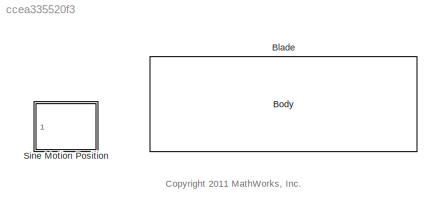
MODEL slx_ccea335520f3
KIND library
BLOCK [Reference] Blade  REF=mblibv1/Bodies/Body
  AttachedToCS = CG
  BodyColor = [1 1 1]
  BodyColorSelMode = COLORPALETTE
  CG = Left$CG$[0 WT_Params.Blade.length/2 0]$CS1$CS1$m$[0 0 0]$Euler X-Y-Z$deg$CS1$false$none
  CGPos = [0 WT_Params.Blade.length/2 0]
  CGRot = [0 0 0]
  CS0Pos = []
  CS0Rot = []
  CS10Pos = [WT_Params.Blade.Geometry.root_radius*sin(0.6*pi) 0 WT_Params.Blade.Geometry.root_radius*cos(0.6*pi)]
  CS10Rot = [0 0 0]
  CS11Pos = [WT_Params.Blade.Geometry.root_radius*sin(0.8*pi) 0 WT_Params.Blade.Geometry.root_radius*cos(0.8*pi)]
  CS11Rot = [0 0 0]
  CS12Pos = [WT_Params.Blade.Geometry.root_radius*sin(1.0*pi) 0 WT_Params.Blade.Geometry.root_radius*cos(1.0*pi)]
  CS12Rot = [0 0 0]
  CS13Pos = [WT_Params.Blade.Geometry.root_radius*sin(1.2*pi) 0 WT_Params.Blade.Geometry.root_radius*cos(1.2*pi)]
  CS13Rot = [0 0 0]
  CS14Pos = [WT_Params.Blade.Geometry.root_radius*sin(1.4*pi) 0 WT_Params.Blade.Geometry.root_radius*cos(1.4*pi)]
  CS14Rot = [0 0 0]
  CS15Pos = [WT_Params.Blade.Geometry.root_radius*sin(1.6*pi) 0 WT_Params.Blade.Geometry.root_radius*cos(1.6*pi)]
  CS15Rot = [0 0 0]
  CS16Pos = [WT_Params.Blade.Geometry.root_radius*sin(1.8*pi) 0 WT_Params.Blade.Geometry.root_radius*cos(1.8*pi)]
  CS16Rot = [0 0 0]
  CS17Pos = [0 WT_Params.Blade.length/4 0]
  CS17Rot = [0 0 0]
  CS18Pos = [WT_Params.Blade.Geometry.ctr_to_leading_edge.x 0 WT_Params.Blade.Geometry.ctr_to_leading_edge.z]
  CS18Rot = [0 0 0]
  CS19Pos = [WT_Params.Blade.Geometry.ctr_to_a1.x 0 WT_Params.Blade.Geometry.ctr_to_a1.z]
  CS19Rot = [0 0 0]
  CS1Pos = [0 0 0]
  CS1Rot = [0 0 0]
  CS20Pos = [WT_Params.Blade.Geometry.ctr_to_a2.x 0 WT_Params.Blade.Geometry.ctr_to_a2.z]
  CS20Rot = [0 0 0]
  CS2Pos = [0 WT_Params.Blade.length 0]
  CS2Rot = [0 0 0]
  CS3Pos = [WT_Params.Blade.Geometry.ctr_to_d1.x 0 WT_Params.Blade.Geometry.ctr_to_d1.z]
  CS3Rot = [0 0 0]
  CS4Pos = [0 0 0]
  CS4Rot = [0 0 0]
  CS5Pos = [0 0 0]
  CS5Rot = [0 0 0]
  CS6Pos = [WT_Params.Blade.Actuator_Offset.x WT_Params.Blade.Actuator_Offset.y WT_Params.Blade.Actuator_Offset.z]
  CS6Rot = [0 0 0]
  CS7Pos = [WT_Params.Blade.Geometry.root_radius*sin(0) 0 WT_Params.Blade.Geometry.root_radius*cos(0)]
  CS7Rot = [0 0 0]
  CS8Pos = [WT_Params.Blade.Geometry.root_radius*sin(0.2*pi) 0 WT_Params.Blade.Geometry.root_radius*cos(0.2*pi)]
  CS8Rot = [0 0 0]
  CS9Pos = [WT_Params.Blade.Geometry.root_radius*sin(0.4*pi) 0 WT_Params.Blade.Geometry.root_radius*cos(0.4*pi)]
  CS9Rot = [0 0 0]
  ClassName = Body
  Density = 1
  DensityUnits = kg/m^3
  DensityUse = false
  DialogClass = MechanicalBodyBlock
  GraphicsMode = MACHINE_DEFAULT
  Inertia = WT_Params.Blade.inertia
  InertiaUnits = kg*m^2
  LConnTagsString = CS4|CS6|CS1|CS5
  Mass = WT_Params.Blade.mass
  MassUnits = kg
  Ports = [0, 0, 0, 0, 0, 4, 1]
  RConnTagsString = CS2
  Shape = Cylinder
  ShapeDims = [1 1]
  ShapeUnits = m
  ShapeUse = false
  SourceBlock = mblibv1/Bodies/Body
  SourceType = Body
  UpdateFromCAD = off
  WorkingFrames = Left$CS4$[0 0 0]$CS1$CS1$m$[0 0 0]$Euler X-Y-Z$deg$CS1$true$none#Left$CS6$[WT_Params.Blade.Actuator_Offset.x WT_Params.Blade.Actuator_Offset.y WT_Params.Blade.Actuator_Offset.z]$CS1$CS1$m$[0 0 0]$Euler X-Y-Z$deg$CS1$true$none#Left$CS1$[0 0 0]$Adjoining$Adjoining$m$[0 0 0]$Euler X-Y-Z$deg$Adjoining$true$none#Left$CS7$[WT_Params.Blade.Geometry.root_radius*sin(0) 0 WT_Params.Blade.Geometry.root_radiu...<+3039ch>
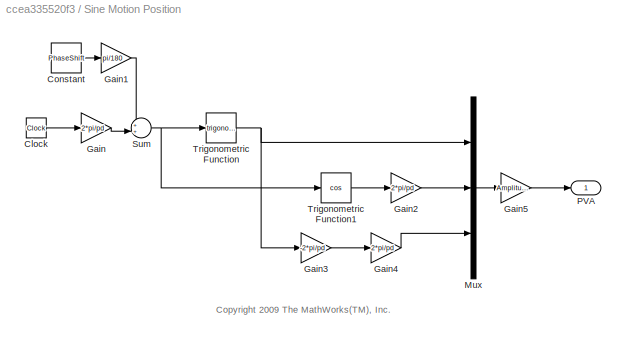
BLOCK [SubSystem] Sine Motion Position
  FunctionWithSeparateData = off
  MaskHideContents = off
  MinAlgLoopOccurrences = off
  Opaque = off
  Ports = [0, 1]
  PropExecContextOutsideSubsystem = off
  RTWSystemCode = Auto
  RequestExecContextInheritance = off
BLOCK [Clock] Sine Motion Position/Clock
BLOCK [Constant] Sine Motion Position/Constant
  Value = PhaseShift
BLOCK [Gain] Sine Motion Position/Gain
  Gain = 2*pi/pd
  OutDataTypeStr = Inherit: Inherit via internal rule
  ParamDataTypeStr = Inherit: Inherit via internal rule
  SaturateOnIntegerOverflow = off
BLOCK [Gain] Sine Motion Position/Gain1
  Gain = pi/180
  OutDataTypeStr = Inherit: Inherit via internal rule
  ParamDataTypeStr = Inherit: Inherit via internal rule
  SaturateOnIntegerOverflow = off
BLOCK [Gain] Sine Motion Position/Gain2
  Gain = 2*pi/pd
  OutDataTypeStr = Inherit: Inherit via internal rule
  ParamDataTypeStr = Inherit: Inherit via internal rule
  SaturateOnIntegerOverflow = off
BLOCK [Gain] Sine Motion Position/Gain3
  Gain = -2*pi/pd
  OutDataTypeStr = Inherit: Inherit via internal rule
  ParamDataTypeStr = Inherit: Inherit via internal rule
  SaturateOnIntegerOverflow = off
BLOCK [Gain] Sine Motion Position/Gain4
  Gain = 2*pi/pd
  OutDataTypeStr = Inherit: Inherit via internal rule
  ParamDataTypeStr = Inherit: Inherit via internal rule
  SaturateOnIntegerOverflow = off
BLOCK [Gain] Sine Motion Position/Gain5
  Gain = Amplitude
  OutDataTypeStr = Inherit: Inherit via internal rule
  ParamDataTypeStr = Inherit: Inherit via internal rule
  SaturateOnIntegerOverflow = off
BLOCK [Mux] Sine Motion Position/Mux
  DisplayOption = bar
  Inputs = 3
  Ports = [3, 1]
BLOCK [Outport] Sine Motion Position/PVA
  IconDisplay = Port number
BLOCK [Sum] Sine Motion Position/Sum
  IconShape = round
  InputSameDT = off
  Inputs = ++|
  OutDataTypeStr = Inherit: Inherit via internal rule
  Ports = [2, 1]
  SaturateOnIntegerOverflow = off
BLOCK [Trigonometry] Sine Motion Position/Trigonometric Function
  Ports = [1, 1]
BLOCK [Trigonometry] Sine Motion Position/Trigonometric Function1
  Operator = cos
  Ports = [1, 1]
ANNOTATION (root): <copyright redacted>
ANNOTATION Sine Motion Position: <copyright redacted>
LINE Sine Motion Position/Clock:1 -> Sine Motion Position/Gain:1
LINE Sine Motion Position/Constant:1 -> Sine Motion Position/Gain1:1
LINE Sine Motion Position/Gain1:1 -> Sine Motion Position/Sum:1
LINE Sine Motion Position/Gain2:1 -> Sine Motion Position/Mux:2
LINE Sine Motion Position/Gain3:1 -> Sine Motion Position/Gain4:1
LINE Sine Motion Position/Gain4:1 -> Sine Motion Position/Mux:3
LINE Sine Motion Position/Gain5:1 -> Sine Motion Position/PVA:1
LINE Sine Motion Position/Gain:1 -> Sine Motion Position/Sum:2
LINE Sine Motion Position/Mux:1 -> Sine Motion Position/Gain5:1
NET Sine Motion Position/Sum:1 -> Sine Motion Position/Trigonometric Function1:1, Sine Motion Position/Trigonometric Function:1
LINE Sine Motion Position/Trigonometric Function1:1 -> Sine Motion Position/Gain2:1
NET Sine Motion Position/Trigonometric Function:1 -> Sine Motion Position/Gain3:1, Sine Motion Position/Mux:1
note: NET lines group one-source signal fan-out (src -> all destinations, sorted); 1:1 wires keep LINE
